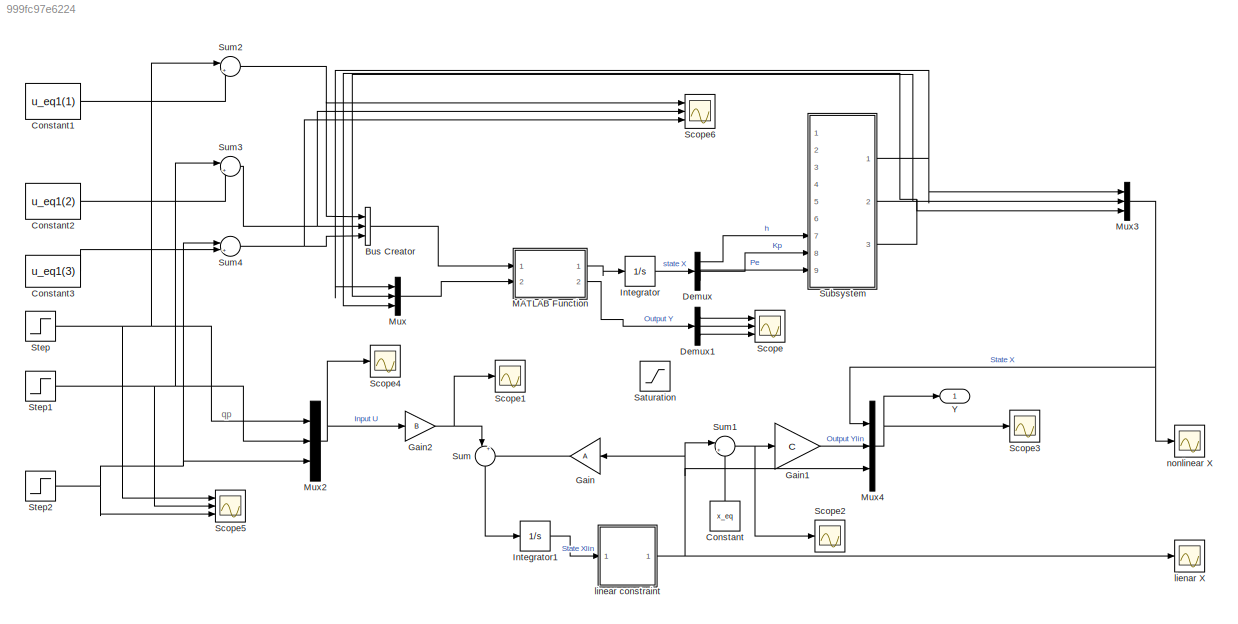
MODEL slx_999fc97e6224
KIND model
CONFIG AbsTol = auto
CONFIG EnableMultiTasking = off
CONFIG FixedStep = auto
CONFIG MaxStep = auto
CONFIG MinStep = auto
CONFIG RelTol = 1e-3
CONFIG SampleTimeConstraint = Unconstrained
CONFIG SolverName = VariableStepAuto
CONFIG StartTime = 0.0
CONFIG StopTime = 20
BLOCK [BusCreator] Bus Creator
  DisplayOption = bar
  InheritFromInputs = on
  Inputs = 3
  Ports = [3, 1]
BLOCK [Constant] Constant
  NameLocation = right
  Value = x_eq
BLOCK [Constant] Constant1
  Value = u_eq1(1)
BLOCK [Constant] Constant2
  Value = u_eq1(2)
BLOCK [Constant] Constant3
  Value = u_eq1(3)
BLOCK [Demux] Demux
  Outputs = 3
  Ports = [1, 3]
BLOCK [Demux] Demux1
  Outputs = 3
  Ports = [1, 3]
BLOCK [Gain] Gain
  Gain = A
  Multiplication = Matrix(K*u)
  NameLocation = top
BLOCK [Gain] Gain1
  Gain = C
  Multiplication = Matrix(K*u)
BLOCK [Gain] Gain2
  Gain = B
  Multiplication = Matrix(K*u) (u vector)
BLOCK [Integrator] Integrator
  InitialCondition = x_eq'
  Ports = [1, 1]
BLOCK [Integrator] Integrator1
  Ports = [1, 1]
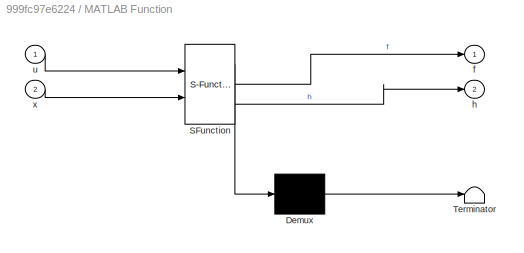
BLOCK [SubSystem] MATLAB Function
  ErrorFcn = Stateflow.Translate.translate
  PermitHierarchicalResolution = ExplicitOnly
  Ports = [2, 2]
  RequestExecContextInheritance = off
  SFBlockType = MATLAB Function
  TreatAsAtomicUnit = on
BLOCK [Demux] MATLAB Function/ Demux 
  Outputs = 1
  Ports = [1, 1]
BLOCK [S-Function] MATLAB Function/ SFunction 
  EnableBusSupport = on
  FunctionName = sf_sfun
  PortCounts = [2 3]
  Ports = [2, 3]
  SFcnIsStateOwnerBlock = off
  SFunctionDeploymentMode = off
  Tag = Stateflow S-Function 2
BLOCK [Terminator] MATLAB Function/ Terminator 
BLOCK [Outport] MATLAB Function/f
BLOCK [Outport] MATLAB Function/h
  Port = 2
BLOCK [Inport] MATLAB Function/u
BLOCK [Inport] MATLAB Function/x
  Port = 2
BLOCK [Mux] Mux
  DisplayOption = bar
  Inputs = 3
  Ports = [3, 1]
BLOCK [Mux] Mux2
  DisplayOption = bar
  Inputs = 3
  Ports = [3, 1]
BLOCK [Mux] Mux3
  DisplayOption = bar
  Inputs = 3
  Ports = [3, 1]
BLOCK [Mux] Mux4
  DisplayOption = bar
  Inputs = 3
  Ports = [3, 1]
BLOCK [Saturate] Saturation
BLOCK [Scope] Scope
  Floating = off
  NumInputPorts = 3
  Ports = [3]
  ScopeSpecificationString = Simulink.scopes.TimeScopeBlockCfg('CurrentConfiguration', extmgr.ConfigurationSet(extmgr.Configuration('Core','General UI',true),extmgr.Configuration('Core','Source UI',true),extmgr.Configuration('Sources','WiredSimulink',true),extmgr.Configuration('Visuals','Time Domain',true,'SerializedDisplays',{struct('MinYLimReal','-5.4626','MaxYLimReal','58.08072','YLabelReal','','MinYLimMag','0.00000','MaxY...<+1440ch>
BLOCK [Scope] Scope1
  Floating = off
  NumInputPorts = 1
  Ports = [1]
  ScopeSpecificationString = Simulink.scopes.TimeScopeBlockCfg('CurrentConfiguration', extmgr.ConfigurationSet(extmgr.Configuration('Core','General UI',true),extmgr.Configuration('Core','Source UI',true),extmgr.Configuration('Sources','WiredSimulink',true,'DataLoggingVariableName','ScopeData1'),extmgr.Configuration('Visuals','Time Domain',true,'SerializedDisplays',{struct('MinYLimReal','-0.84838','MaxYLimReal','0.13545','YLab...<+1426ch>
BLOCK [Scope] Scope2
  Floating = off
  NumInputPorts = 1
  Ports = [1]
  ScopeSpecificationString = Simulink.scopes.TimeScopeBlockCfg('CurrentConfiguration', extmgr.ConfigurationSet(extmgr.Configuration('Core','General UI',true),extmgr.Configuration('Core','Source UI',true),extmgr.Configuration('Sources','WiredSimulink',true,'DataLoggingVariableName','ScopeData2'),extmgr.Configuration('Visuals','Time Domain',true,'SerializedDisplays',{struct('MinYLimReal','-5.324','MaxYLimReal','57.88244','YLabe...<+1422ch>
BLOCK [Scope] Scope3
  Floating = off
  NumInputPorts = 1
  Ports = [1]
  ScopeSpecificationString = Simulink.scopes.TimeScopeBlockCfg('CurrentConfiguration', extmgr.ConfigurationSet(extmgr.Configuration('Core','General UI',true),extmgr.Configuration('Core','Source UI',true),extmgr.Configuration('Sources','WiredSimulink',true,'DataLoggingVariableName','ScopeData3'),extmgr.Configuration('Visuals','Time Domain',true,'SerializedDisplays',{struct('MinYLimReal','-6.45493','MaxYLimReal','58.0944','YLab...<+1893ch>
BLOCK [Scope] Scope4
  Floating = off
  NumInputPorts = 1
  Ports = [1]
  ScopeSpecificationString = Simulink.scopes.TimeScopeBlockCfg('CurrentConfiguration', extmgr.ConfigurationSet(extmgr.Configuration('Core','General UI',true),extmgr.Configuration('Core','Source UI',true),extmgr.Configuration('Sources','WiredSimulink',true,'DataLoggingVariableName','ScopeData1'),extmgr.Configuration('Visuals','Time Domain',true,'SerializedDisplays',{struct('MinYLimReal','-128.65723','MaxYLimReal','14.3768','YL...<+1441ch>
BLOCK [Scope] Scope5
  Floating = off
  NumInputPorts = 3
  Ports = [3]
  ScopeSpecificationString = Simulink.scopes.TimeScopeBlockCfg('CurrentConfiguration', extmgr.ConfigurationSet(extmgr.Configuration('Core','General UI',true),extmgr.Configuration('Core','Source UI',true),extmgr.Configuration('Sources','WiredSimulink',true,'DataLoggingVariableName','ScopeData1'),extmgr.Configuration('Visuals','Time Domain',true,'SerializedDisplays',{struct('MinYLimReal','-0.10634','MaxYLimReal','0.27598','YLab...<+1438ch>
BLOCK [Scope] Scope6
  Floating = off
  NumInputPorts = 3
  Ports = [3]
  ScopeSpecificationString = Simulink.scopes.TimeScopeBlockCfg('CurrentConfiguration', extmgr.ConfigurationSet(extmgr.Configuration('Core','General UI',true),extmgr.Configuration('Core','Source UI',true),extmgr.Configuration('Sources','WiredSimulink',true,'DataLoggingVariableName','ScopeData2'),extmgr.Configuration('Visuals','Time Domain',true,'SerializedDisplays',{struct('MinYLimReal','-19.17857','MaxYLimReal','192.60714','Y...<+1427ch>
BLOCK [Step] Step
  After = uss(1)
  SampleTime = 0
  Time = 0
BLOCK [Step] Step1
  After = uss(2)
  SampleTime = 0
  Time = 0
BLOCK [Step] Step2
  After = uss(3)
  SampleTime = 0
  Time = 0
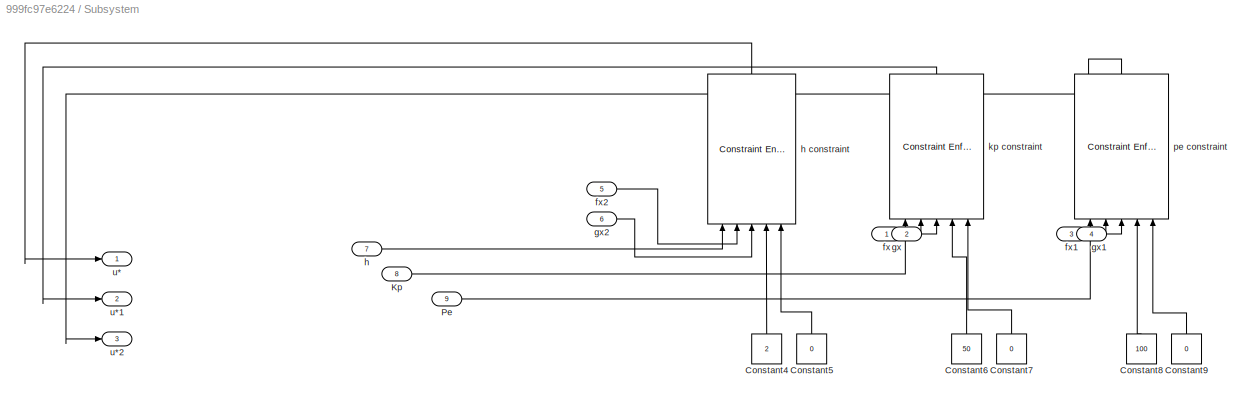
BLOCK [SubSystem] Subsystem
  Ports = [9, 3]
  RequestExecContextInheritance = off
BLOCK [Constant] Subsystem/Constant4
  NameLocation = right
  Value = 2
BLOCK [Constant] Subsystem/Constant5
  NameLocation = right
  Value = 0
BLOCK [Constant] Subsystem/Constant6
  NameLocation = right
  Value = 50
BLOCK [Constant] Subsystem/Constant7
  NameLocation = right
  Value = 0
BLOCK [Constant] Subsystem/Constant8
  NameLocation = right
  Value = 100
BLOCK [Constant] Subsystem/Constant9
  NameLocation = right
  Value = 0
BLOCK [Inport] Subsystem/Kp
  Port = 8
BLOCK [Inport] Subsystem/Pe
  Port = 9
BLOCK [Inport] Subsystem/fx
BLOCK [Inport] Subsystem/fx1
  Port = 3
BLOCK [Inport] Subsystem/fx2
  Port = 5
BLOCK [Inport] Subsystem/gx
  Port = 2
BLOCK [Inport] Subsystem/gx1
  Port = 4
BLOCK [Inport] Subsystem/gx2
  Port = 6
BLOCK [Inport] Subsystem/h
  Port = 7
BLOCK [Reference] Subsystem/h constraint  REF=slctrlblks/Constraint Enforcement
  NameLocation = right
  Ports = [5, 1]
  SourceBlock = slctrlblks/Constraint Enforcement
  SourceProductBaseCode = SD
  SourceType = Constraint Enforcement
BLOCK [Reference] Subsystem/kp constraint  REF=slctrlblks/Constraint Enforcement
  NameLocation = right
  Ports = [5, 1]
  SourceBlock = slctrlblks/Constraint Enforcement
  SourceProductBaseCode = SD
  SourceType = Constraint Enforcement
BLOCK [Reference] Subsystem/pe constraint  REF=slctrlblks/Constraint Enforcement
  NameLocation = right
  Ports = [5, 1]
  SourceBlock = slctrlblks/Constraint Enforcement
  SourceProductBaseCode = SD
  SourceType = Constraint Enforcement
BLOCK [Outport] Subsystem/u*
BLOCK [Outport] Subsystem/u*1
  Port = 2
BLOCK [Outport] Subsystem/u*2
  Port = 3
BLOCK [Sum] Sum
  Inputs = |++
  NameLocation = left
  Ports = [2, 1]
BLOCK [Sum] Sum1
  Inputs = |++
  Ports = [2, 1]
BLOCK [Sum] Sum2
  Inputs = |++
  Ports = [2, 1]
BLOCK [Sum] Sum3
  Inputs = |++
  Ports = [2, 1]
BLOCK [Sum] Sum4
  Inputs = |++
  Ports = [2, 1]
BLOCK [Outport] Y
  SignalName = Y
BLOCK [Scope] lienar X
  Floating = off
  NumInputPorts = 1
  Ports = [1]
  ScopeSpecificationString = Simulink.scopes.TimeScopeBlockCfg('CurrentConfiguration', extmgr.ConfigurationSet(extmgr.Configuration('Core','General UI',true),extmgr.Configuration('Core','Source UI',true),extmgr.Configuration('Sources','WiredSimulink',true,'DataLoggingVariableName','ScopeData2'),extmgr.Configuration('Visuals','Time Domain',true,'SerializedDisplays',{struct('MinYLimReal','-2.52679','MaxYLimReal','22.74108','YLa...<+1460ch>
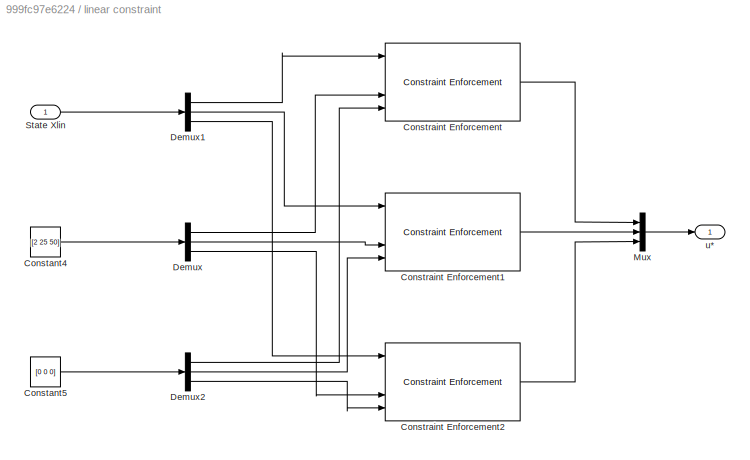
BLOCK [SubSystem] linear constraint
  Ports = [1, 1]
  RequestExecContextInheritance = off
BLOCK [Constant] linear constraint/Constant4
  Value = [2 25 50]
BLOCK [Constant] linear constraint/Constant5
  Value = [0 0 0]
BLOCK [Reference] linear constraint/Constraint Enforcement  REF=slctrlblks/Constraint Enforcement
  Ports = [5, 1]
  SourceBlock = slctrlblks/Constraint Enforcement
  SourceProductBaseCode = SD
  SourceType = Constraint Enforcement
BLOCK [Reference] linear constraint/Constraint Enforcement1  REF=slctrlblks/Constraint Enforcement
  Ports = [5, 1]
  SourceBlock = slctrlblks/Constraint Enforcement
  SourceProductBaseCode = SD
  SourceType = Constraint Enforcement
BLOCK [Reference] linear constraint/Constraint Enforcement2  REF=slctrlblks/Constraint Enforcement
  Ports = [5, 1]
  SourceBlock = slctrlblks/Constraint Enforcement
  SourceProductBaseCode = SD
  SourceType = Constraint Enforcement
BLOCK [Demux] linear constraint/Demux
  Outputs = 3
  Ports = [1, 3]
BLOCK [Demux] linear constraint/Demux1
  Outputs = 3
  Ports = [1, 3]
BLOCK [Demux] linear constraint/Demux2
  Outputs = 3
  Ports = [1, 3]
BLOCK [Mux] linear constraint/Mux
  DisplayOption = bar
  Inputs = 3
  Ports = [3, 1]
BLOCK [Inport] linear constraint/State Xlin
BLOCK [Outport] linear constraint/u*
BLOCK [Scope] nonlinear X
  Floating = off
  NumInputPorts = 1
  Ports = [1]
  ScopeSpecificationString = Simulink.scopes.TimeScopeBlockCfg('CurrentConfiguration', extmgr.ConfigurationSet(extmgr.Configuration('Core','General UI',true),extmgr.Configuration('Core','Source UI',true),extmgr.Configuration('Sources','WiredSimulink',true,'DataLoggingVariableName','ScopeData1'),extmgr.Configuration('Visuals','Time Domain',true,'SerializedDisplays',{struct('MinYLimReal','1.64103','MaxYLimReal','2.58134','YLabe...<+1437ch>
ANNOTATION (root): qp
LINE Bus Creator:1 -> MATLAB Function:1
LINE Constant1:1 -> Sum2:2
LINE Constant2:1 -> Sum3:2
LINE Constant3:1 -> Sum4:2
LINE Constant:1 -> Sum1:2
LINE Demux1:1 -> Scope:1
LINE Demux1:2 -> Scope:2
LINE Demux1:3 -> Scope:3
LINE Demux:1 -> Subsystem:7
LINE Demux:2 -> Subsystem:8
LINE Demux:3 -> Subsystem:9
LINE Gain1:1 -> Mux4:2
NET Gain2:1 -> Scope1:1, Sum:1
LINE Gain:1 -> Sum:2
LINE Integrator1:1 -> linear constraint:1
LINE Integrator:1 -> Demux:1
LINE MATLAB Function:1 -> Integrator:1
LINE MATLAB Function:2 -> Demux1:1
NET Mux2:1 -> Gain2:1, Scope4:1
NET Mux3:1 -> Mux4:1, nonlinear X:1
NET Mux4:1 -> Scope3:1, Y:1
LINE Mux:1 -> MATLAB Function:2
NET Step1:1 -> Mux2:2, Scope5:2, Sum3:1
NET Step2:1 -> Mux2:3, Scope5:3, Sum4:1
NET Step:1 -> Mux2:1, Scope5:1, Sum2:1
LINE Subsystem/Constant4:1 -> Subsystem/h constraint:4
LINE Subsystem/Constant5:1 -> Subsystem/h constraint:5
LINE Subsystem/Constant6:1 -> Subsystem/kp constraint:4
LINE Subsystem/Constant7:1 -> Subsystem/kp constraint:5
LINE Subsystem/Constant8:1 -> Subsystem/pe constraint:4
LINE Subsystem/Constant9:1 -> Subsystem/pe constraint:5
LINE Subsystem/Kp:1 -> Subsystem/kp constraint:1
LINE Subsystem/Pe:1 -> Subsystem/pe constraint:1
LINE Subsystem/fx1:1 -> Subsystem/pe constraint:2
LINE Subsystem/fx2:1 -> Subsystem/h constraint:2
LINE Subsystem/fx:1 -> Subsystem/kp constraint:2
LINE Subsystem/gx1:1 -> Subsystem/pe constraint:3
LINE Subsystem/gx2:1 -> Subsystem/h constraint:3
LINE Subsystem/gx:1 -> Subsystem/kp constraint:3
LINE Subsystem/h constraint:1 -> Subsystem/u*:1
LINE Subsystem/h:1 -> Subsystem/h constraint:1
LINE Subsystem/kp constraint:1 -> Subsystem/u*1:1
LINE Subsystem/pe constraint:1 -> Subsystem/u*2:1
NET Subsystem:1 -> Mux3:1, Mux:1
NET Subsystem:2 -> Mux3:2, Mux:2
NET Subsystem:3 -> Mux3:3, Mux:3
NET Sum1:1 -> Gain1:1, Scope2:1
NET Sum2:1 -> Bus Creator:1, Scope6:1
NET Sum3:1 -> Bus Creator:2, Scope6:2
NET Sum4:1 -> Bus Creator:3, Scope6:3
LINE Sum:1 -> Integrator1:1
LINE linear constraint/Constant4:1 -> linear constraint/Demux:1
LINE linear constraint/Constant5:1 -> linear constraint/Demux2:1
LINE linear constraint/Constraint Enforcement1:1 -> linear constraint/Mux:2
LINE linear constraint/Constraint Enforcement2:1 -> linear constraint/Mux:3
LINE linear constraint/Constraint Enforcement:1 -> linear constraint/Mux:1
LINE linear constraint/Demux1:1 -> linear constraint/Constraint Enforcement:1
LINE linear constraint/Demux1:2 -> linear constraint/Constraint Enforcement1:1
LINE linear constraint/Demux1:3 -> linear constraint/Constraint Enforcement2:1
LINE linear constraint/Demux2:1 -> linear constraint/Constraint Enforcement:5
LINE linear constraint/Demux2:2 -> linear constraint/Constraint Enforcement1:5
LINE linear constraint/Demux2:3 -> linear constraint/Constraint Enforcement2:5
LINE linear constraint/Demux:1 -> linear constraint/Constraint Enforcement:4
LINE linear constraint/Demux:2 -> linear constraint/Constraint Enforcement1:4
LINE linear constraint/Demux:3 -> linear constraint/Constraint Enforcement2:4
LINE linear constraint/Mux:1 -> linear constraint/u*:1
LINE linear constraint/State Xlin:1 -> linear constraint/Demux1:1
NET linear constraint:1 -> Gain:1, Mux4:3, Sum1:1, lienar X:1
note: NET lines group one-source signal fan-out (src -> all destinations, sorted); 1:1 wires keep LINE
CHART MATLAB Function states=1 transitions=1
  STATE_LABEL 'eML_blk_kernel()'
  STATE_LABEL 'SCRIPT:\nfunction [f,h] = fcn(u,x)\np=getparam_Gsp();\nu1=u(1);\nu2=u(2);\nu3=u(3);\nx1=x(1);\nx2=x(2);\nx3=x(3);\nf=[p.a1*x3+p.a2*x2-p.b1*u1-p.b2*(u2+p.K*x1)-p.k1;...\n-p.a3*x2*(u2+p.K*x1)+p.k2;...\n-p.a4*x3-p.a5*x2+p.b3*u1-((p.a6*x3+p.b4)/(p.b5*u3+p.k3))*u3+p.k4\n];\nh=[x1; x2; x3];\n\n'
CHART  states=0 transitions=0
